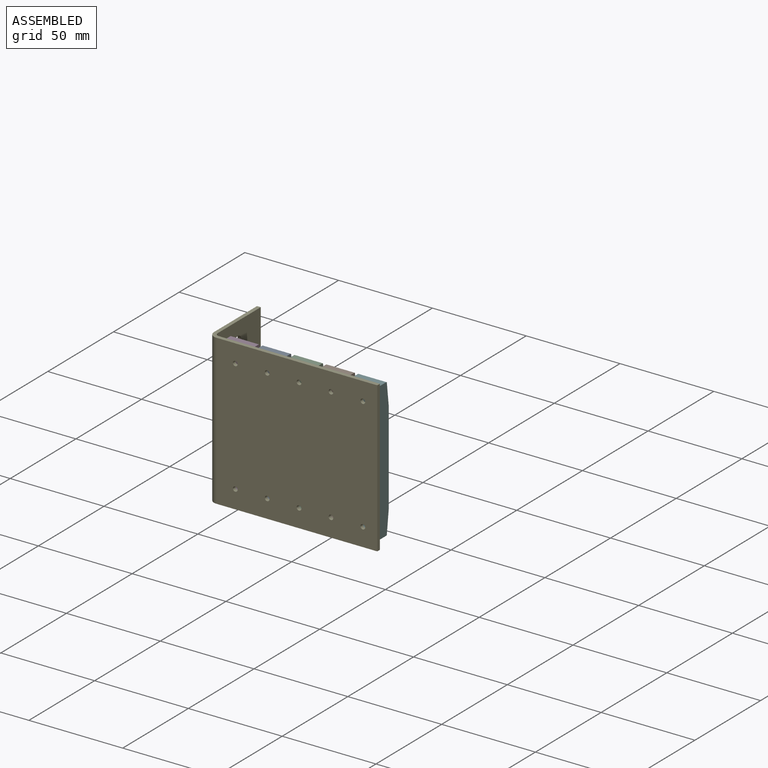
[diagram: assembled view]
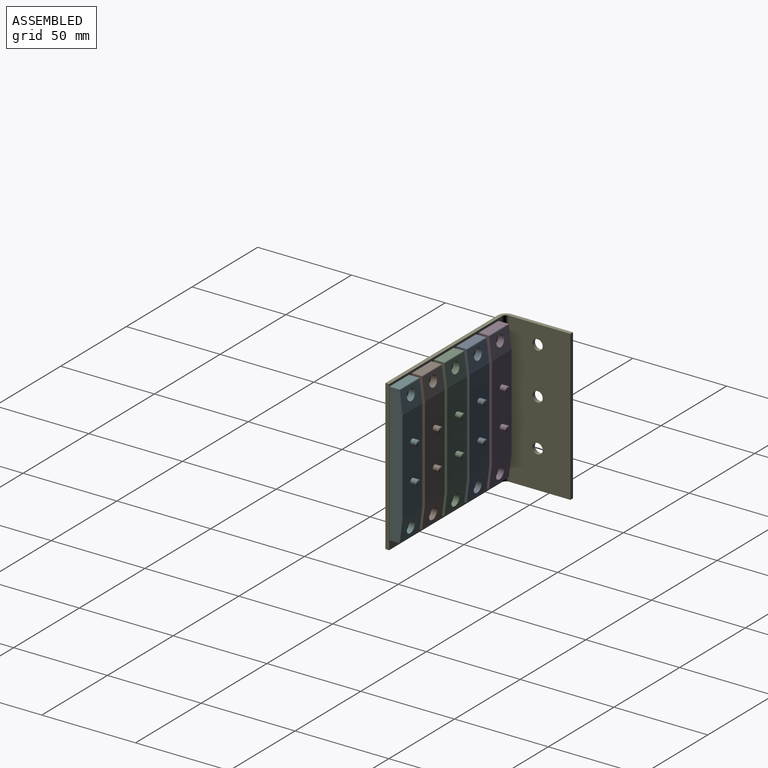
[diagram: assembled view, second angle]
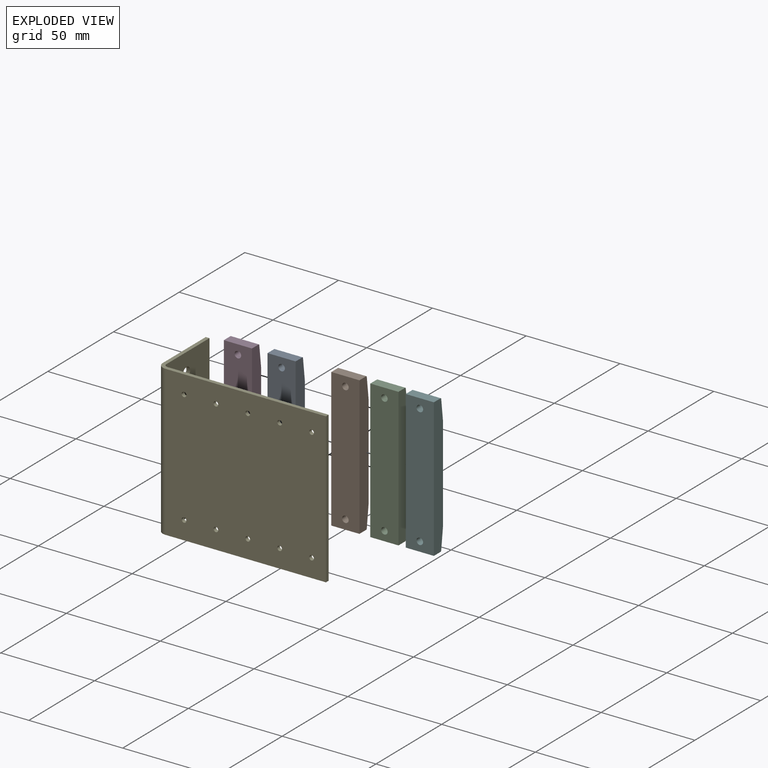
[diagram: exploded view]
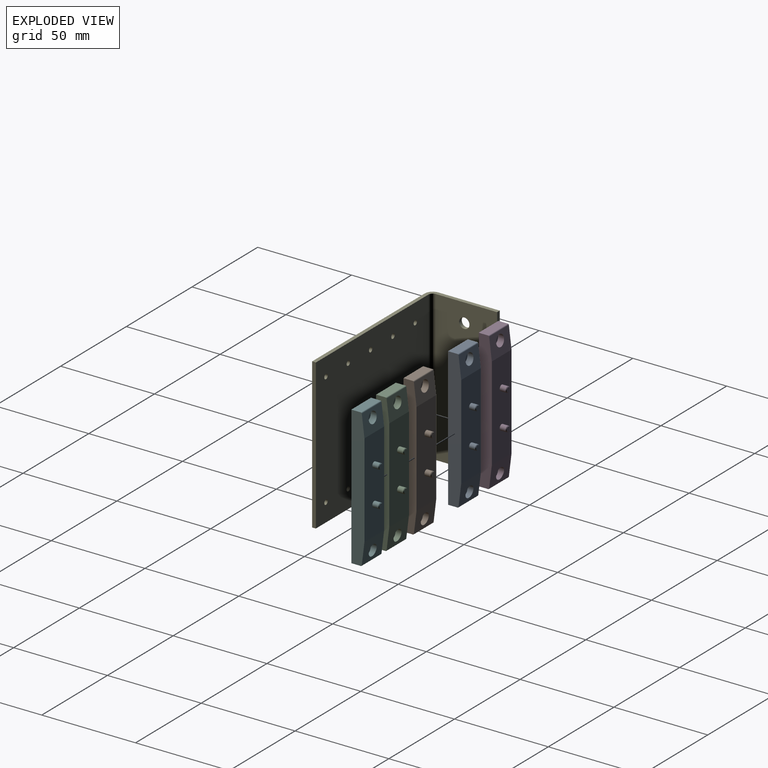
[diagram: exploded view, second angle]
ASSEMBLY  parts=6 mates=2
PART A: 22 faces, bbox 74.2x10.7x15.2 mm
  f0: plane 50x15mm, normal (0,1,0), area 735.9mm2, adj f1,f3,f8,f11,f18,f19
  f1: plane 15.15x11.72mm, normal (-0.12,0.99,0), area 146.2mm2, adj f0,f17,f18,f19,f20
  f2: cylinder r=0.5mm len=15mm, axis (0,0,1), area 10.9mm2, adj f3,f5,f18,f19
  f3: plane 15.15x11.72mm, normal (0.12,0.99,0), area 146.2mm2, adj f0,f2,f12,f18,f19
  f4: plane 15x5.08mm, normal (-1,0,0), area 76.3mm2, adj f6,f18,f19,f20
  f5: plane 15x5.08mm, normal (1,0,0), area 76.3mm2, adj f2,f6,f18,f19
  f6: plane 74x15mm, normal (0,-1,0), area 1090.8mm2, adj f4,f5,f14,f15,f18,f19
  f7: cone r=1.5mm half-angle=45deg, axis (0,-1,0), area 3.7mm2, adj f8,f21
  f8: cylinder r=1.5mm len=3.19mm, axis (0,-1,0), area 30.1mm2, adj f0,f7
  f9: plane 2.39x2.39mm, normal (0,1,0), area 4.5mm2, adj f10
  f10: cone r=1.5mm half-angle=45deg, axis (0,-1,0), area 3.7mm2, adj f9,f11
  f11: cylinder r=1.5mm len=3.19mm, axis (0,-1,0), area 30.1mm2, adj f0,f10
  f12: cylinder r=3mm len=6mm, axis (0,-1,0), area 58.8mm2, adj f3,f13
  f13: plane 6x6mm, normal (0,1,0), area 18.7mm2, adj f12,f14
  f14: cylinder r=1.75mm len=3.5mm, axis (0,-1,0), area 33.1mm2, adj f6,f13
  f15: cylinder r=1.75mm len=3.5mm, axis (0,1,0), area 33.1mm2, adj f6,f16
  f16: plane 6x6mm, normal (0,1,0), area 18.7mm2, adj f15,f17
  f17: cylinder r=3mm len=6mm, axis (0,1,0), area 59mm2, adj f1,f16
  f18: plane 74x7mm, normal (0,0,1), area 500.2mm2, adj f0,f1,f2,f3,f4,f5,f6,f20
  f19: plane 74x7mm, normal (0,0,-1), area 500.2mm2, adj f0,f1,f2,f3,f4,f5,f6,f20
  f20: cylinder r=0.5mm len=15mm, axis (0,0,1), area 10.9mm2, adj f1,f4,f18,f19
  f21: plane 2.39x2.39mm, normal (0,1,0), area 4.5mm2, adj f7
PART B: same geometry as A
PART C: same geometry as A
PART D: same geometry as A
PART E: 27 faces, bbox 90x37x80 mm
  f0: plane 32.7x2mm, normal (0,0,-1), area 65.4mm2, adj f1,f6,f7,f24
  f1: plane 80x2mm, normal (0,1,0), area 160mm2, adj f0,f2,f6,f7
  f2: plane 32.7x2mm, normal (0,0,1), area 65.4mm2, adj f1,f6,f7,f23
  f3: cylinder r=2.75mm len=5.5mm, axis (1,0,0), area 34.6mm2, adj f6,f7
  f4: cylinder r=2.75mm len=5.5mm, axis (1,0,0), area 34.6mm2, adj f6,f7
  f5: cylinder r=2.75mm len=5.5mm, axis (1,0,0), area 34.6mm2, adj f6,f7
  f6: plane 80x32.7mm, normal (1,0,0), area 2544.7mm2, adj f0,f1,f2,f3,f4,f5,f26
  f7: plane 80x32.7mm, normal (-1,0,0), area 2544.7mm2, adj f0,f1,f2,f3,f4,f5,f25
  f8: plane 85.7x2mm, normal (0,0,-1), area 171.4mm2, adj f20,f21,f22,f24
  f9: plane 85.7x2mm, normal (0,0,1), area 171.4mm2, adj f20,f21,f22,f23
  f10: cylinder r=1.25mm len=2.5mm, axis (0,1,0), area 15.7mm2, adj f21,f22
  f11: cylinder r=1.25mm len=2.5mm, axis (0,1,0), area 15.7mm2, adj f21,f22
  f12: cylinder r=1.25mm len=2.5mm, axis (0,1,0), area 15.7mm2, adj f21,f22
  f13: cylinder r=1.25mm len=2.5mm, axis (0,1,0), area 15.7mm2, adj f21,f22
  f14: cylinder r=1.25mm len=2.5mm, axis (0,1,0), area 15.7mm2, adj f21,f22
  f15: cylinder r=1.25mm len=2.5mm, axis (0,1,0), area 15.7mm2, adj f21,f22
  f16: cylinder r=1.25mm len=2.5mm, axis (0,1,0), area 15.7mm2, adj f21,f22
  f17: cylinder r=1.25mm len=2.5mm, axis (0,1,0), area 15.7mm2, adj f21,f22
  f18: cylinder r=1.25mm len=2.5mm, axis (0,1,0), area 15.7mm2, adj f21,f22
  f19: cylinder r=1.25mm len=2.5mm, axis (0,1,0), area 15.7mm2, adj f21,f22
  f20: plane 80x2mm, normal (1,0,0), area 160mm2, adj f8,f9,f21,f22
  f21: plane 85.7x80mm, normal (0,1,0), area 6806.9mm2, adj f8,f9,f10,f11,f12,f13,f14,f15
  f22: plane 85.7x80mm, normal (0,-1,0), area 6806.9mm2, adj f8,f9,f10,f11,f12,f13,f14,f15
  f23: plane 4.3x4.3mm, normal (0,0,1), area 10.4mm2, adj f2,f9,f25,f26
  f24: plane 4.3x4.3mm, normal (0,0,-1), area 10.4mm2, adj f0,f8,f25,f26
  f25: cylinder r=4.3mm len=80mm, axis (0,0,1), area 540.4mm2, adj f7,f22,f23,f24
  f26: cylinder r=2.3mm len=80mm, axis (0,0,1), area 289mm2, adj f6,f21,f23,f24
PART F: same geometry as A
PLACE A rot(axis=(0,1,0),90deg) t=(18.13,-14.08,-3.08)mm
PLACE B rot(axis=(0,1,0),90deg) t=(52.13,-14.08,-3.08)mm
PLACE C rot(axis=(0,1,0),90deg) t=(35.13,-14.08,-3.08)mm
PLACE D rot(axis=(0,1,0),90deg) t=(1.13,-14.08,-3.08)mm
PLACE E t=(-11.17,-21.08,-44.83)mm
PLACE F rot(axis=(0,1,0),90deg) t=(69.13,-14.08,-3.08)mm
MATE cylindrical D.f12 <-> E.f19  axis (0,-1,0) through (1.13,-18.07,-35.08)mm
MATE planar D.f6 <-> E.f21  axis (0,-1,0) through (1.13,-21.08,-3.08)mm
